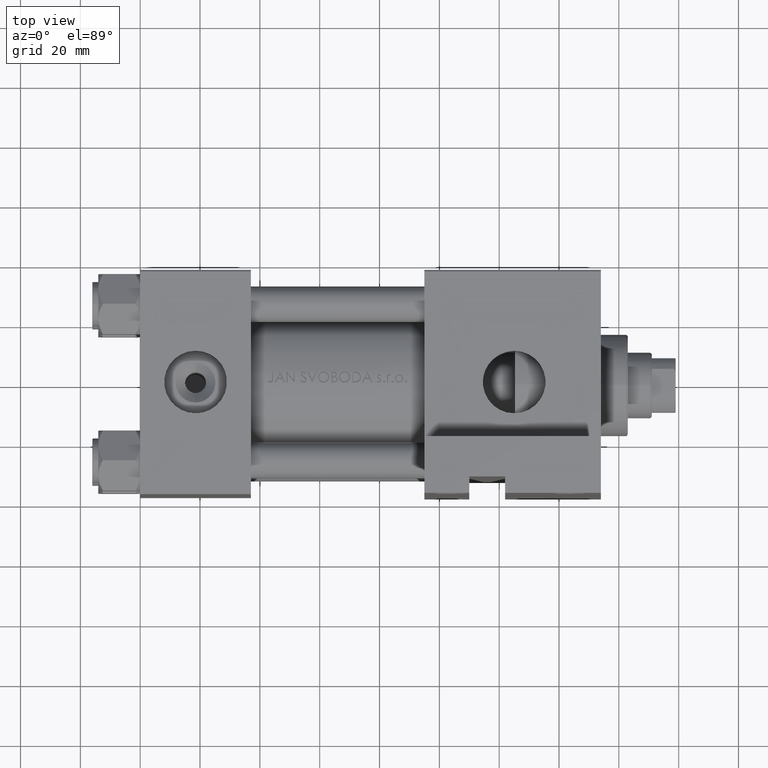
[diagram: clean part render]
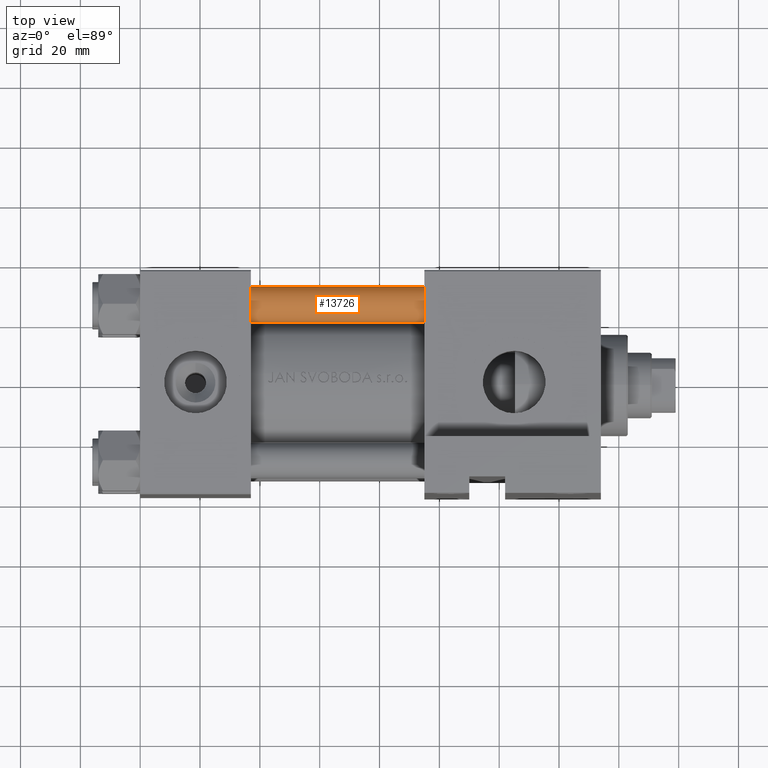
[diagram: same view with one face highlighted and labeled with its STEP entity id]
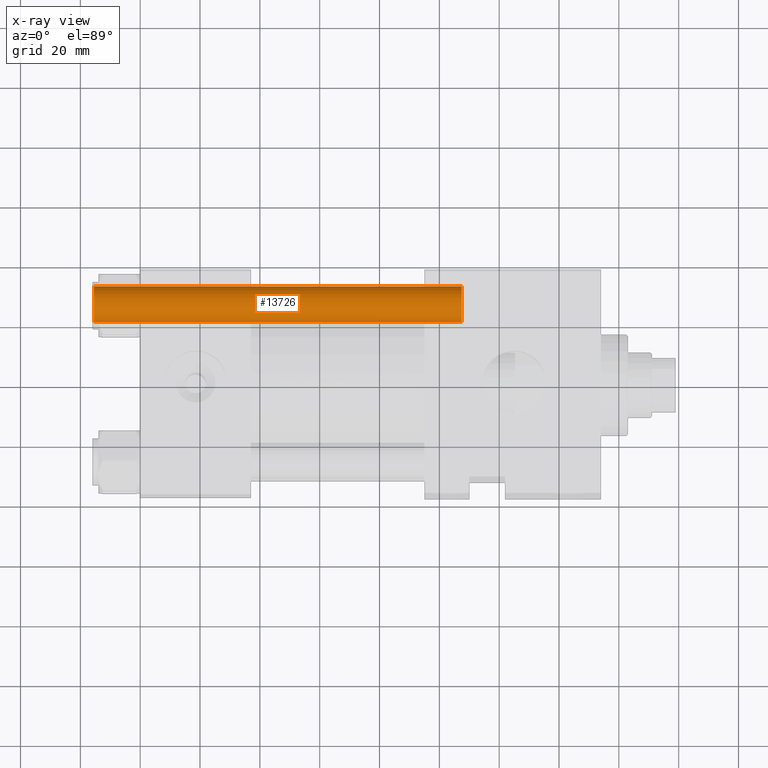
[diagram: x-ray of the same camera — body ghosted, the highlighted face saturated]
A machine part, top view. The second image highlights one B-rep face of the part: STEP entity #13726.
The next image is the same camera in x-ray: the body ghosted, the highlighted face saturated — about 0% of this face is hidden behind the body in this view.
In plain terms, the highlighted cylindrical surface (edge-blend (fillet) strip) has radius 6 mm, axis along (1, -0, 0).
Its self-contained STEP definition (entity closure, byte-faithful):
#1354 = FACE_OUTER_BOUND ( 'NONE', #33948, .T. ) ;
#1615 = DIRECTION ( 'NONE',  ( 1.000000000000000000, 0.000000000000000000, 0.000000000000000000 ) ) ;
#2620 = LINE ( 'NONE', #10871, #38146 ) ;
#3754 = AXIS2_PLACEMENT_3D ( 'NONE', #22096, #47332, #1615 ) ;
#5692 = AXIS2_PLACEMENT_3D ( 'NONE', #10015, #49189, #22285 ) ;
#9990 = VERTEX_POINT ( 'NONE', #21160 ) ;
#10015 = CARTESIAN_POINT ( 'NONE',  ( 0.000000000000000000, 0.000000000000000000, 0.4999999999999865663 ) ) ;
#10149 = CIRCLE ( 'NONE', #3754, 6.000000000000000888 ) ;
#10691 = LINE ( 'NONE', #41299, #21087 ) ;
#10871 = CARTESIAN_POINT ( 'NONE',  ( -6.000000000000000888, 0.000000000000000000, 124.0000000000000000 ) ) ;
#13257 = ORIENTED_EDGE ( 'NONE', *, *, #20398, .T. ) ;
#13726 = ADVANCED_FACE ( 'NONE', ( #1354 ), #31735, .T. ) ;
#13775 = ORIENTED_EDGE ( 'NONE', *, *, #29033, .T. ) ;
#14684 = DIRECTION ( 'NONE',  ( -0.000000000000000000, -0.000000000000000000, -1.000000000000000000 ) ) ;
#15322 = EDGE_CURVE ( 'NONE', #41359, #9990, #2620, .T. ) ;
#16032 = VERTEX_POINT ( 'NONE', #24375 ) ;
#16146 = CARTESIAN_POINT ( 'NONE',  ( -6.000000000000000888, 0.000000000000000000, 123.5000000000000426 ) ) ;
#16264 = ORIENTED_EDGE ( 'NONE', *, *, #15322, .T. ) ;
#20398 = EDGE_CURVE ( 'NONE', #16032, #41359, #10149, .T. ) ;
#20929 = DIRECTION ( 'NONE',  ( -1.000000000000000000, 0.000000000000000000, 0.000000000000000000 ) ) ;
#21087 = VECTOR ( 'NONE', #14684, 1000.000000000000000 ) ;
#21160 = CARTESIAN_POINT ( 'NONE',  ( -6.000000000000000888, 0.000000000000000000, 0.4999999999999865663 ) ) ;
#22096 = CARTESIAN_POINT ( 'NONE',  ( 0.000000000000000000, 0.000000000000000000, 123.5000000000000426 ) ) ;
#22285 = DIRECTION ( 'NONE',  ( 1.000000000000000000, 0.000000000000000000, 0.000000000000000000 ) ) ;
#22424 = DIRECTION ( 'NONE',  ( -0.000000000000000000, -0.000000000000000000, -1.000000000000000000 ) ) ;
#24375 = CARTESIAN_POINT ( 'NONE',  ( 6.000000000000000888, 7.347880794884120722E-16, 123.5000000000000426 ) ) ;
#26576 = CARTESIAN_POINT ( 'NONE',  ( 6.000000000000000888, 7.347880794884120722E-16, 0.4999999999999865663 ) ) ;
#29033 = EDGE_CURVE ( 'NONE', #9990, #29044, #43331, .T. ) ;
#29044 = VERTEX_POINT ( 'NONE', #26576 ) ;
#31735 = CYLINDRICAL_SURFACE ( 'NONE', #45329, 6.000000000000000888 ) ;
#33948 = EDGE_LOOP ( 'NONE', ( #37614, #13257, #16264, #13775 ) ) ;
#37614 = ORIENTED_EDGE ( 'NONE', *, *, #39122, .F. ) ;
#38146 = VECTOR ( 'NONE', #22424, 1000.000000000000000 ) ;
#39122 = EDGE_CURVE ( 'NONE', #16032, #29044, #10691, .T. ) ;
#39510 = CARTESIAN_POINT ( 'NONE',  ( 0.000000000000000000, 0.000000000000000000, 124.0000000000000000 ) ) ;
#41299 = CARTESIAN_POINT ( 'NONE',  ( 6.000000000000000888, 7.347880794884120722E-16, 124.0000000000000000 ) ) ;
#41359 = VERTEX_POINT ( 'NONE', #16146 ) ;
#43331 = CIRCLE ( 'NONE', #5692, 6.000000000000000888 ) ;
#45329 = AXIS2_PLACEMENT_3D ( 'NONE', #39510, #47057, #20929 ) ;
#47057 = DIRECTION ( 'NONE',  ( -0.000000000000000000, -0.000000000000000000, -1.000000000000000000 ) ) ;
#47332 = DIRECTION ( 'NONE',  ( 0.000000000000000000, 0.000000000000000000, -1.000000000000000000 ) ) ;
#49189 = DIRECTION ( 'NONE',  ( -0.000000000000000000, -0.000000000000000000, 1.000000000000000000 ) ) ;